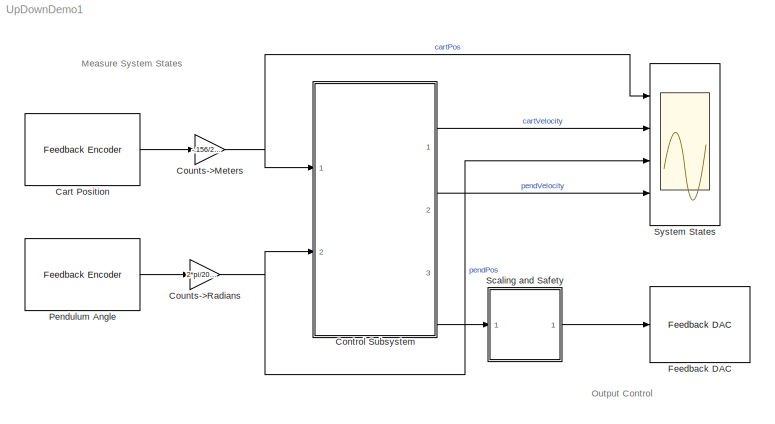
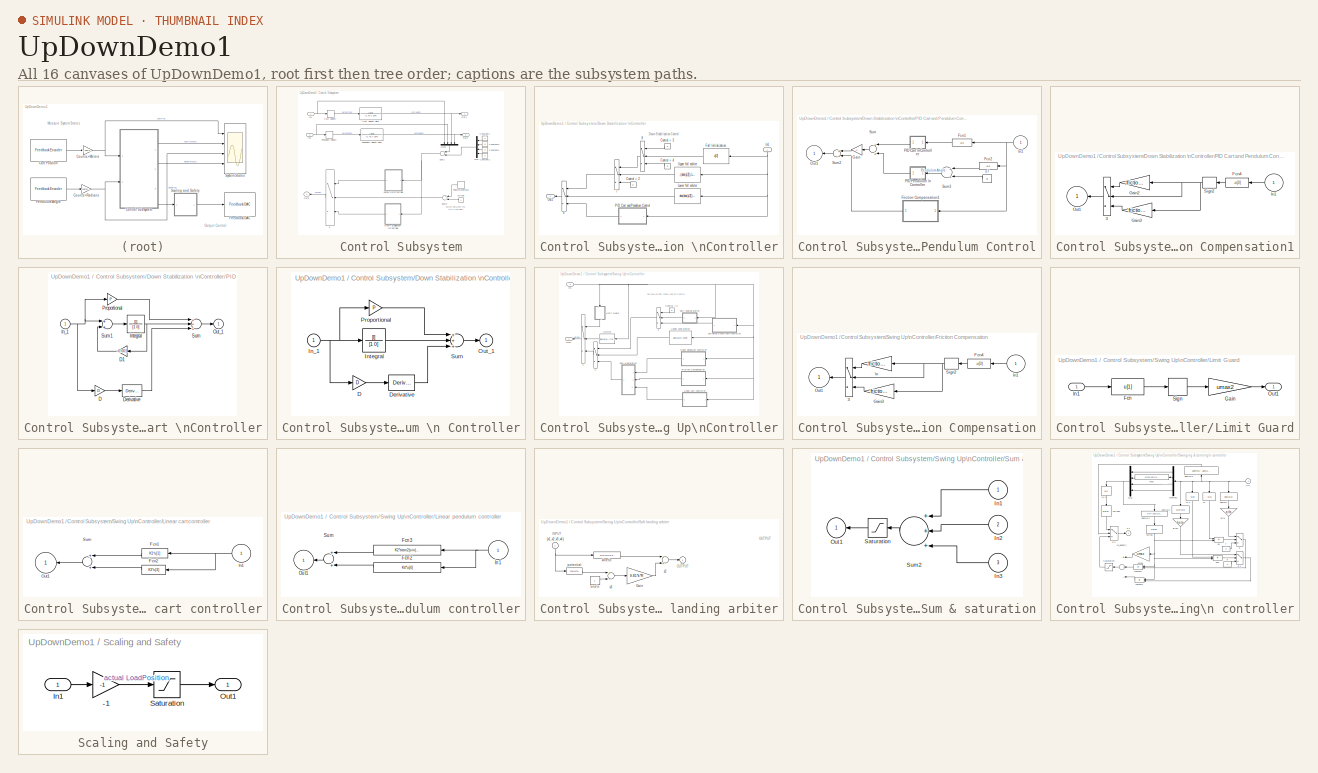
[diagram: thumbnail index - all 16 canvases of the model, root first then tree order]
MODEL UpDownDemo1
KIND model
CONFIG AbsTol = auto
CONFIG FixedStep = 0.001
CONFIG MaxStep = auto
CONFIG MinStep = auto
CONFIG RelTol = 1e-3
CONFIG Solver = ode1
CONFIG SolverMode = SingleTasking
CONFIG StartTime = 0.0
CONFIG StopTime = 100.0
BLOCK [Reference] Cart Position   REF=pci1711/Advantech \nPCI1711 I//O Board Lib/Feedback Encoder 
  Ports = [0, 1]
  SourceBlock = pci1711/Advantech \nPCI1711 I//O Board Lib/Feedback Encoder
  SourceType = Feedback Encoder Block
  channel = 0
  hwAccess = on
  offset = 0
  tsamp = 0.001
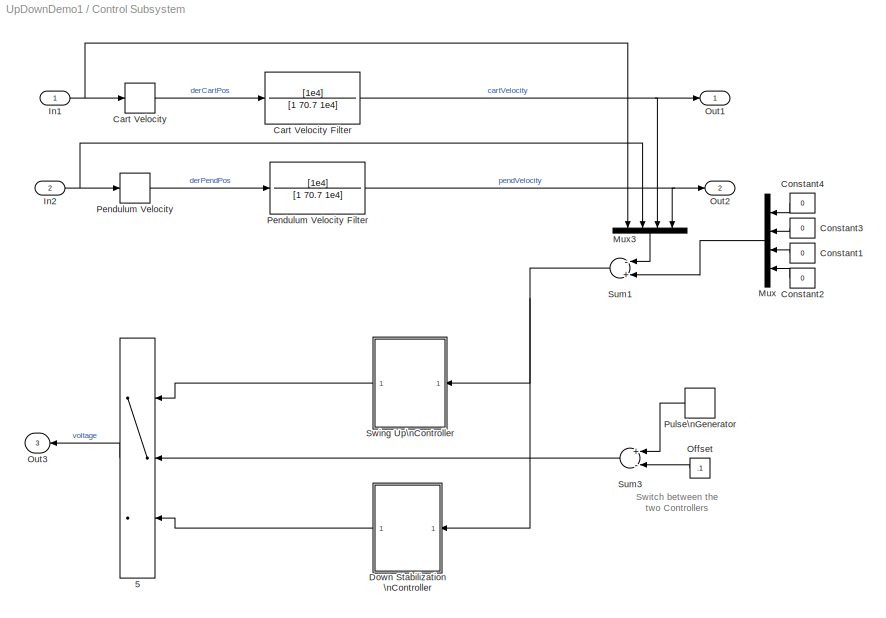
BLOCK [SubSystem] Control Subsystem
  Ports = [2, 3]
  TreatAsAtomicUnit = off
BLOCK [Switch] Control Subsystem/5
BLOCK [Derivative] Control Subsystem/Cart Velocity
BLOCK [TransferFcn] Control Subsystem/Cart Velocity Filter
  Denominator = [1 70.7 1e4]
  Numerator = [1e4]
BLOCK [Constant] Control Subsystem/Constant1
  Value = 0
BLOCK [Constant] Control Subsystem/Constant2
  Value = 0
BLOCK [Constant] Control Subsystem/Constant3
  Value = 0
BLOCK [Constant] Control Subsystem/Constant4
  Value = 0
BLOCK [SubSystem] Control Subsystem/Down Stabilization \nController
  Ports = [1, 1]
  TreatAsAtomicUnit = off
BLOCK [Switch] Control Subsystem/Down Stabilization \nController/6
  Threshold = 0.5
BLOCK [Switch] Control Subsystem/Down Stabilization \nController/7
BLOCK [Switch] Control Subsystem/Down Stabilization \nController/8
BLOCK [Constant] Control Subsystem/Down Stabilization \nController/Control = 2
  Value = 0
BLOCK [Constant] Control Subsystem/Down Stabilization \nController/Control = 3
  Value = .2
BLOCK [Constant] Control Subsystem/Down Stabilization \nController/Control = 4
  Value = .5
BLOCK [Fcn] Control Subsystem/Down Stabilization \nController/Fall Initialization
  Expr = u[3]
  MaskDescription = ZONE
  MaskDisplay = plot(0,0,100,100,[40,60,80,83,80,60,40,20,17,20,40],[89,89,80,70,60,51,51,60,69,80,90],[83,50,17],[70,8,68])
  MaskIconFrame = on
  MaskIconOpaque = on
  MaskIconRotate = none
  MaskIconUnits = autoscale
  MaskType = ZONE
BLOCK [Inport] Control Subsystem/Down Stabilization \nController/In1
BLOCK [Fcn] Control Subsystem/Down Stabilization \nController/Lower fall arbiter
  Expr = abs(abs(u[2])-pi)
  MaskDescription = ZONE
  MaskDisplay = plot(0,0,100,100,[40,60,80,83,80,60,40,20,17,20,40],[89,89,80,70,60,51,51,60,69,80,90],[83,50,17],[70,8,68])
  MaskIconFrame = on
  MaskIconOpaque = on
  MaskIconRotate = none
  MaskIconUnits = autoscale
  MaskType = ZONE
BLOCK [Outport] Control Subsystem/Down Stabilization \nController/Out1
BLOCK [SubSystem] Control Subsystem/Down Stabilization \nController/PID Cart and Pendulum Control
  MaskDisplay = plot(0,0,100,100,[40,30,20],[87,85,80],[46,54,54,46,46],[90,90,80,80,90],[46,45,45,46,54,55,55,54,46],[78,80,90,91,91,90,80,78,78],[51,51,49,49],[78,10,10,78],[90,80,70,60],[70,80,85,88],[20,10],[80,70],[20,20,15],[73,80,80],[85,80,80],[80,80,74])  <repeated x5 — deduplicated; at blocks: PID Cart and Pendulum Control, Friction Compensation1, Friction Compensation, Linear cart controller, Linear pendulum controller>
  MaskIconFrame = on
  MaskIconOpaque = on
  MaskIconRotate = none
  MaskIconUnits = autoscale
  MaskType = linear
  Ports = [1, 1]
  TreatAsAtomicUnit = off
BLOCK [Fcn] Control Subsystem/Down Stabilization \nController/PID Cart and Pendulum Control/Fcn1
  Expr = u[1]
BLOCK [Fcn] Control Subsystem/Down Stabilization \nController/PID Cart and Pendulum Control/Fcn2
  Expr = u[2]
BLOCK [SubSystem] Control Subsystem/Down Stabilization \nController/PID Cart and Pendulum Control/Friction Compensation1
  MaskCallbackString = |
  MaskEnableString = on,on
  MaskIconFrame = on
  MaskIconOpaque = on
  MaskIconRotate = none
  MaskIconUnits = autoscale
  MaskPromptString = Friction Compensation Magnitude in Negative Direction|Friction Compensation Magnitude in Positive Direction
  MaskStyleString = edit,edit
  MaskToolTipString = on,on
  MaskTunableValueString = on,on
  MaskType = linear
  MaskValueString = .1|.1
  MaskVarAliasString = ,
  MaskVariables = frictionCompNeg=@1;frictionCompPos=@2;
  MaskVisibilityString = on,on
  Ports = [1, 1]
  TreatAsAtomicUnit = off
BLOCK [Switch] Control Subsystem/Down Stabilization \nController/PID Cart and Pendulum Control/Friction Compensation1/3
BLOCK [Fcn] Control Subsystem/Down Stabilization \nController/PID Cart and Pendulum Control/Friction Compensation1/Fcn4
  Expr = -u[3]
BLOCK [Gain] Control Subsystem/Down Stabilization \nController/PID Cart and Pendulum Control/Friction Compensation1/Gain2
  Gain = frictionCompPos
BLOCK [Gain] Control Subsystem/Down Stabilization \nController/PID Cart and Pendulum Control/Friction Compensation1/Gain3
  Gain = frictionCompNeg
BLOCK [Inport] Control Subsystem/Down Stabilization \nController/PID Cart and Pendulum Control/Friction Compensation1/In1
BLOCK [Outport] Control Subsystem/Down Stabilization \nController/PID Cart and Pendulum Control/Friction Compensation1/Out1
  InitialOutput = 0
BLOCK [Signum] Control Subsystem/Down Stabilization \nController/PID Cart and Pendulum Control/Friction Compensation1/Sign2
  Tag = T
BLOCK [Gain] Control Subsystem/Down Stabilization \nController/PID Cart and Pendulum Control/Gain
  Gain = -1
BLOCK [Inport] Control Subsystem/Down Stabilization \nController/PID Cart and Pendulum Control/In1
BLOCK [Outport] Control Subsystem/Down Stabilization \nController/PID Cart and Pendulum Control/Out1
  InitialOutput = 0
BLOCK [SubSystem] Control Subsystem/Down Stabilization \nController/PID Cart and Pendulum Control/PID Cart \nController
  MaskCallbackString = ||
  MaskDescription = Enter expressions for proportional, integral, and derivative terms.\nP+I/s+Ds
  MaskDisplay = disp('PID')
  MaskEnableString = on,on,on
  MaskHelp = This block implements a PID controller where parameters are entered for the Proportional, Integral and Derivative terms. Unmask this block to see how it works. The derivative term is implemented using a true derivative block.
  MaskIconFrame = on
  MaskIconOpaque = on
  MaskIconRotate = none
  MaskIconUnits = autoscale
  MaskInitialization = P=@1; I=@2; D=@3;
  MaskPromptString = Proportional:|Integral|Derivative:
  MaskStyleString = edit,edit,edit
  MaskToolTipString = on,on,on
  MaskTunableValueString = on,on,on
  MaskType = PID Controller
  MaskValueString = -10|-2|-2
  MaskVarAliasString = ,,
  MaskVisibilityString = on,on,on
  Ports = [1, 1]
  ShowPortLabels = off
  TreatAsAtomicUnit = off
BLOCK [Gain] Control Subsystem/Down Stabilization \nController/PID Cart and Pendulum Control/PID Cart \nController/D
  Gain = D
BLOCK [Gain] Control Subsystem/Down Stabilization \nController/PID Cart and Pendulum Control/PID Cart \nController/D1
  Gain = -0.001
BLOCK [Derivative] Control Subsystem/Down Stabilization \nController/PID Cart and Pendulum Control/PID Cart \nController/Derivative
BLOCK [Inport] Control Subsystem/Down Stabilization \nController/PID Cart and Pendulum Control/PID Cart \nController/In_1
BLOCK [TransferFcn] Control Subsystem/Down Stabilization \nController/PID Cart and Pendulum Control/PID Cart \nController/Integral
  Denominator = [1 0]
  Numerator = [I]
BLOCK [Outport] Control Subsystem/Down Stabilization \nController/PID Cart and Pendulum Control/PID Cart \nController/Out_1
  InitialOutput = 0
BLOCK [Gain] Control Subsystem/Down Stabilization \nController/PID Cart and Pendulum Control/PID Cart \nController/Proportional
  Gain = P
BLOCK [Sum] Control Subsystem/Down Stabilization \nController/PID Cart and Pendulum Control/PID Cart \nController/Sum
  Inputs = +++
  Ports = [3, 1]
BLOCK [Sum] Control Subsystem/Down Stabilization \nController/PID Cart and Pendulum Control/PID Cart \nController/Sum1
  Ports = [2, 1]
BLOCK [SubSystem] Control Subsystem/Down Stabilization \nController/PID Cart and Pendulum Control/PID Pendulum \n Controller
  MaskCallbackString = ||
  MaskDescription = Enter expressions for proportional, integral, and derivative terms.\nP+I/s+Ds
  MaskDisplay = disp('PID')
  MaskEnableString = on,on,on
  MaskHelp = This block implements a PID controller where parameters are entered for the Proportional, Integral and Derivative terms. Unmask this block to see how it works. The derivative term is implemented using a true derivative block.
  MaskIconFrame = on
  MaskIconOpaque = on
  MaskIconRotate = none
  MaskIconUnits = autoscale
  MaskInitialization = P=@1; I=@2; D=@3;
  MaskPromptString = Proportional:|Integral|Derivative:
  MaskStyleString = edit,edit,edit
  MaskToolTipString = on,on,on
  MaskTunableValueString = on,on,on
  MaskType = PID Controller
  MaskValueString = 5|0|0
  MaskVarAliasString = ,,
  MaskVisibilityString = on,on,on
  Ports = [1, 1]
  ShowPortLabels = off
  TreatAsAtomicUnit = off
BLOCK [Gain] Control Subsystem/Down Stabilization \nController/PID Cart and Pendulum Control/PID Pendulum \n Controller/D
  Gain = D
BLOCK [Derivative] Control Subsystem/Down Stabilization \nController/PID Cart and Pendulum Control/PID Pendulum \n Controller/Derivative
BLOCK [Inport] Control Subsystem/Down Stabilization \nController/PID Cart and Pendulum Control/PID Pendulum \n Controller/In_1
BLOCK [TransferFcn] Control Subsystem/Down Stabilization \nController/PID Cart and Pendulum Control/PID Pendulum \n Controller/Integral
  Denominator = [1 0]
  Numerator = [I]
BLOCK [Outport] Control Subsystem/Down Stabilization \nController/PID Cart and Pendulum Control/PID Pendulum \n Controller/Out_1
  InitialOutput = 0
BLOCK [Gain] Control Subsystem/Down Stabilization \nController/PID Cart and Pendulum Control/PID Pendulum \n Controller/Proportional
  Gain = P
BLOCK [Sum] Control Subsystem/Down Stabilization \nController/PID Cart and Pendulum Control/PID Pendulum \n Controller/Sum
  Inputs = +++
  Ports = [3, 1]
BLOCK [Sum] Control Subsystem/Down Stabilization \nController/PID Cart and Pendulum Control/Sum
  Ports = [2, 1]
BLOCK [Sum] Control Subsystem/Down Stabilization \nController/PID Cart and Pendulum Control/Sum2
  Ports = [2, 1]
BLOCK [Sum] Control Subsystem/Down Stabilization \nController/PID Cart and Pendulum Control/Sum3
  Ports = [2, 1]
BLOCK [Constant] Control Subsystem/Down Stabilization \nController/PID Cart and Pendulum Control/s7
  Value = pi
BLOCK [Fcn] Control Subsystem/Down Stabilization \nController/Upper fall arbiter
  Expr = -(abs(u[2])-Lcone)
  MaskDescription = ZONE
  MaskDisplay = plot(0,0,100,100,[40,60,80,83,80,60,40,20,17,20,40],[89,89,80,70,60,51,51,60,69,80,90],[83,50,17],[70,8,68])
  MaskEnableString = on
  MaskIconFrame = on
  MaskIconOpaque = on
  MaskIconRotate = none
  MaskIconUnits = autoscale
  MaskPromptString = Cone Width
  MaskStyleString = edit
  MaskToolTipString = on
  MaskTunableValueString = on
  MaskType = ZONE
  MaskValueString = 0.3
  MaskVariables = Lcone=@1;
  MaskVisibilityString = on
BLOCK [Inport] Control Subsystem/In1
BLOCK [Inport] Control Subsystem/In2
  Port = 2
BLOCK [Mux] Control Subsystem/Mux
  Ports = [4, 1]
BLOCK [Mux] Control Subsystem/Mux3
  Ports = [4, 1]
BLOCK [Constant] Control Subsystem/Offset
  Value = .1
BLOCK [Outport] Control Subsystem/Out1
BLOCK [Outport] Control Subsystem/Out2
  Port = 2
BLOCK [Outport] Control Subsystem/Out3
  Port = 3
BLOCK [Derivative] Control Subsystem/Pendulum Velocity
BLOCK [TransferFcn] Control Subsystem/Pendulum Velocity  Filter
  Denominator = [1 70.7 1e4]
  Numerator = [1e4]
BLOCK [DiscretePulseGenerator] Control Subsystem/Pulse\nGenerator
  Period = 30
  PulseType = Time based
  PulseWidth = 70
BLOCK [Sum] Control Subsystem/Sum1
  Inputs = -+
  Ports = [2, 1]
BLOCK [Sum] Control Subsystem/Sum3
  Inputs = +-
  Ports = [2, 1]
BLOCK [SubSystem] Control Subsystem/Swing Up\nController
  Ports = [1, 1]
  TreatAsAtomicUnit = off
BLOCK [Switch] Control Subsystem/Swing Up\nController/2
BLOCK [Switch] Control Subsystem/Swing Up\nController/3
BLOCK [Switch] Control Subsystem/Swing Up\nController/4
BLOCK [Constant] Control Subsystem/Swing Up\nController/Control = 0
  Value = 0
BLOCK [SubSystem] Control Subsystem/Swing Up\nController/Friction Compensation
  MaskCallbackString = |
  MaskEnableString = on,on
  MaskIconFrame = on
  MaskIconOpaque = on
  MaskIconRotate = none
  MaskIconUnits = autoscale
  MaskPromptString = Friction Compensation Magnitude in Negative Direction|Friction Compensation Magnitude in Positive Direction
  MaskStyleString = edit,edit
  MaskToolTipString = on,on
  MaskTunableValueString = on,on
  MaskType = linear
  MaskValueString = .1|.1
  MaskVarAliasString = ,
  MaskVariables = frictionCompNeg=@1;frictionCompPos=@2;
  MaskVisibilityString = on,on
  Ports = [1, 1]
  TreatAsAtomicUnit = off
BLOCK [Switch] Control Subsystem/Swing Up\nController/Friction Compensation/3
BLOCK [Fcn] Control Subsystem/Swing Up\nController/Friction Compensation/Fcn4
  Expr = -u[3]
BLOCK [Gain] Control Subsystem/Swing Up\nController/Friction Compensation/Gain3
  Gain = frictionCompNeg
BLOCK [Inport] Control Subsystem/Swing Up\nController/Friction Compensation/In1
BLOCK [Outport] Control Subsystem/Swing Up\nController/Friction Compensation/Out1
  InitialOutput = 0
BLOCK [Signum] Control Subsystem/Swing Up\nController/Friction Compensation/Sign2
  Tag = T
BLOCK [Gain] Control Subsystem/Swing Up\nController/Friction Compensation/\n
  Gain = frictionCompPos
BLOCK [Inport] Control Subsystem/Swing Up\nController/In1
BLOCK [SubSystem] Control Subsystem/Swing Up\nController/Limit Guard
  MaskDisplay = plot(0,0,100,100,[20,40,40,20,20],[60,60,49,49,60],[56,59,40],[58,55,55],[56,59],[52,55],[38,13,13],[39,39,46],[46,13],[46,46],[23,23,24,22,24,24,22,23],[47,45,49,48,48,46,47,49],[36,35,34,34,37,34,36,35,36,37,35,34,35],[49,48,46,49,48,47,45,47,48,46,46,47,49],[22,22,24,24],[46,49,48,47])
  MaskEnableString = on
  MaskIconFrame = on
  MaskIconOpaque = on
  MaskIconRotate = none
  MaskIconUnits = autoscale
  MaskPromptString = maximal force
  MaskStyleString = edit
  MaskToolTipString = on
  MaskTunableValueString = on
  MaskValueString = .5
  MaskVariables = umax2=@1;
  MaskVisibilityString = on
  Ports = [1, 1]
  TreatAsAtomicUnit = off
BLOCK [Fcn] Control Subsystem/Swing Up\nController/Limit Guard/Fcn
  Expr = u[1]
BLOCK [Gain] Control Subsystem/Swing Up\nController/Limit Guard/Gain
  Gain = umax2
BLOCK [Inport] Control Subsystem/Swing Up\nController/Limit Guard/In1
BLOCK [Outport] Control Subsystem/Swing Up\nController/Limit Guard/Out1
  InitialOutput = 0
BLOCK [Signum] Control Subsystem/Swing Up\nController/Limit Guard/Sign
BLOCK [Fcn] Control Subsystem/Swing Up\nController/Limiter
  Expr = abs(u[1])-limit
  MaskDisplay = plot(0,0,100,100,[10,90,90,10],[52,52,50,50],[30,30],[52,60],[70,68,68,70,70],[60,60,52,52,60],[30,32,32,30],[52,52,60,60])
  MaskEnableString = on
  MaskIconFrame = on
  MaskIconOpaque = on
  MaskIconRotate = none
  MaskIconUnits = autoscale
  MaskPromptString = Rail mg - rail limit
  MaskStyleString = edit
  MaskToolTipString = on
  MaskTunableValueString = on
  MaskValueString = 0.3
  MaskVariables = limit=@1;
  MaskVisibilityString = on
BLOCK [SubSystem] Control Subsystem/Swing Up\nController/Linear cart controller
  MaskCallbackString = |
  MaskEnableString = on,on
  MaskIconFrame = on
  MaskIconOpaque = on
  MaskIconRotate = none
  MaskIconUnits = autoscale
  MaskPromptString = K1  - position  feedback| K3  -  velocity  feedback
  MaskStyleString = edit,edit
  MaskToolTipString = on,on
  MaskTunableValueString = on,on
  MaskType = linear
  MaskValueString = -7|-4
  MaskVarAliasString = ,
  MaskVariables = K1=@1;K3=@2;
  MaskVisibilityString = on,on
  Ports = [1, 1]
  TreatAsAtomicUnit = off
BLOCK [Fcn] Control Subsystem/Swing Up\nController/Linear cart controller/Fcn1
  Expr = K1*u[1]
BLOCK [Fcn] Control Subsystem/Swing Up\nController/Linear cart controller/Fcn2
  Expr = K3*u[3]
BLOCK [Inport] Control Subsystem/Swing Up\nController/Linear cart controller/In1
BLOCK [Outport] Control Subsystem/Swing Up\nController/Linear cart controller/Out1
  InitialOutput = 0
BLOCK [Sum] Control Subsystem/Swing Up\nController/Linear cart controller/Sum
  Ports = [2, 1]
BLOCK [SubSystem] Control Subsystem/Swing Up\nController/Linear pendulum controller
  MaskCallbackString = |
  MaskEnableString = on,on
  MaskIconFrame = on
  MaskIconOpaque = on
  MaskIconRotate = none
  MaskIconUnits = autoscale
  MaskPromptString = K2  - angle  feedback| K4  - angular velocity  feedback
  MaskStyleString = edit,edit
  MaskToolTipString = on,on
  MaskTunableValueString = on,on
  MaskType = linear
  MaskValueString = 50|3.5
  MaskVarAliasString = ,
  MaskVariables = K2=@1;K4=@2;
  MaskVisibilityString = on,on
  Ports = [1, 1]
  TreatAsAtomicUnit = off
BLOCK [Fcn] Control Subsystem/Swing Up\nController/Linear pendulum controller/Fcn2
  Expr = K4*u[4]
BLOCK [Fcn] Control Subsystem/Swing Up\nController/Linear pendulum controller/Fcn3
  Expr = K2*atan2(sin(u[2]),cos(u[2]))
BLOCK [Inport] Control Subsystem/Swing Up\nController/Linear pendulum controller/In1
BLOCK [Outport] Control Subsystem/Swing Up\nController/Linear pendulum controller/Out1
  InitialOutput = 0
BLOCK [Sum] Control Subsystem/Swing Up\nController/Linear pendulum controller/Sum
  Ports = [2, 1]
BLOCK [Outport] Control Subsystem/Swing Up\nController/Out1
BLOCK [SubSystem] Control Subsystem/Swing Up\nController/Soft landing arbiter
  MaskCallbackString = |
  MaskDescription = Soft landing
  MaskDisplay = plot(0,0,100,100,[14,20,20,14,14],[20,20,8,8,20],[40,35,35,40,40],[39,40,51,51,40],[60,55,55,56,60,60],[70,70,60,60,60,71],[74,74,80,80,74],[80,91,91,80,80])
  MaskEnableString = on,on
  MaskIconFrame = on
  MaskIconOpaque = on
  MaskIconRotate = none
  MaskIconUnits = autoscale
  MaskPromptString = k coefficient|R value
  MaskStyleString = edit,edit
  MaskToolTipString = on,on
  MaskTunableValueString = on,on
  MaskType = Soft landing
  MaskValueString = 8.7|0.35
  MaskVarAliasString = ,
  MaskVariables = k=@1;R=@2;
  MaskVisibilityString = on,on
  Ports = [1, 1]
  ShowPortLabels = off
  TreatAsAtomicUnit = off
BLOCK [Inport] Control Subsystem/Swing Up\nController/Soft landing arbiter/(x1,x2,x3,x4)
BLOCK [Gain] Control Subsystem/Swing Up\nController/Soft landing arbiter/Gain
  Gain = 9.81*k*R
BLOCK [Outport] Control Subsystem/Swing Up\nController/Soft landing arbiter/S5
  InitialOutput = 0
BLOCK [Fcn] Control Subsystem/Swing Up\nController/Soft landing arbiter/kinetic
  Expr = u[4]*u[4]*0.5
BLOCK [Constant] Control Subsystem/Swing Up\nController/Soft landing arbiter/one\n
BLOCK [Fcn] Control Subsystem/Swing Up\nController/Soft landing arbiter/potential
  Expr = cos(u[2])
BLOCK [Sum] Control Subsystem/Swing Up\nController/Soft landing arbiter/s2
  Ports = [2, 1]
BLOCK [Sum] Control Subsystem/Swing Up\nController/Soft landing arbiter/s3
  Inputs = +-
  Ports = [2, 1]
BLOCK [SubSystem] Control Subsystem/Swing Up\nController/Sum & saturation
  MaskEnableString = on
  MaskIconFrame = on
  MaskIconOpaque = on
  MaskIconRotate = none
  MaskIconUnits = autoscale
  MaskPromptString = max control
  MaskStyleString = edit
  MaskToolTipString = on
  MaskTunableValueString = on
  MaskValueString = 2.5
  MaskVariables = umax1=@1;
  MaskVisibilityString = on
  Ports = [3, 1]
  TreatAsAtomicUnit = off
BLOCK [Inport] Control Subsystem/Swing Up\nController/Sum & saturation/In1
BLOCK [Inport] Control Subsystem/Swing Up\nController/Sum & saturation/In2
  Port = 2
BLOCK [Inport] Control Subsystem/Swing Up\nController/Sum & saturation/In3
  Port = 3
BLOCK [Outport] Control Subsystem/Swing Up\nController/Sum & saturation/Out1
  InitialOutput = 0
BLOCK [Saturate] Control Subsystem/Swing Up\nController/Sum & saturation/Saturation
  LowerLimit = -umax1
  UpperLimit = umax1
BLOCK [Sum] Control Subsystem/Swing Up\nController/Sum & saturation/Sum2
  Inputs = +++
  Ports = [3, 1]
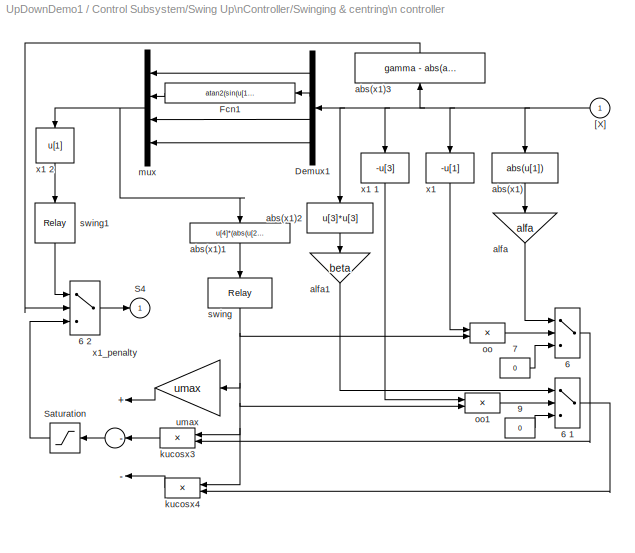
BLOCK [SubSystem] Control Subsystem/Swing Up\nController/Swinging & centring\n controller
  MaskCallbackString = |||
  MaskDescription = swing
  MaskDisplay = plot(0,0,100,100,[20,20],[12,87],[93,90,90,93,7],[50,46,54,50,50],[20,22,18,20],[87,80,80,88],[80,80,75,75,71,71,65,65,60,60,49,49,40,40,20],[50,40,40,60,60,50,50,80,80,20,21,80,80,21,20])
  MaskEnableString = on,on,on,on
  MaskIconFrame = on
  MaskIconOpaque = on
  MaskIconRotate = none
  MaskIconUnits = autoscale
  MaskPromptString = maximal control umax|ALPHA - centering cart factor related to position|BETA - centering cart factor related to velocity|GAMMA - centering cart factor related to + - pi/2 angle
  MaskStyleString = edit,edit,edit,edit
  MaskToolTipString = on,on,on,on
  MaskTunableValueString = on,on,on,on
  MaskType = swing
  MaskValueString = 1|2.2|.4|0.
  MaskVarAliasString = ,,,
  MaskVariables = umax=@1;alfa=@2;beta=@3;gamma=@4;
  MaskVisibilityString = on,on,on,on
  Ports = [1, 1]
  ShowPortLabels = off
  TreatAsAtomicUnit = off
BLOCK [Switch] Control Subsystem/Swing Up\nController/Swinging & centring\n controller/6 
BLOCK [Switch] Control Subsystem/Swing Up\nController/Swinging & centring\n controller/6 1
BLOCK [Switch] Control Subsystem/Swing Up\nController/Swinging & centring\n controller/6 2
BLOCK [Constant] Control Subsystem/Swing Up\nController/Swinging & centring\n controller/7
  Value = 0
BLOCK [Constant] Control Subsystem/Swing Up\nController/Swinging & centring\n controller/9
  Value = 0
BLOCK [Demux] Control Subsystem/Swing Up\nController/Swinging & centring\n controller/Demux1
  Ports = [1, 4]
BLOCK [Fcn] Control Subsystem/Swing Up\nController/Swinging & centring\n controller/Fcn1
  Expr = atan2(sin(u[1]),cos(u[1]))
BLOCK [Outport] Control Subsystem/Swing Up\nController/Swinging & centring\n controller/S4
  InitialOutput = 0
BLOCK [Saturate] Control Subsystem/Swing Up\nController/Swinging & centring\n controller/Saturation
  LowerLimit = -umax
  UpperLimit = umax
BLOCK [Inport] Control Subsystem/Swing Up\nController/Swinging & centring\n controller/[X]
BLOCK [Fcn] Control Subsystem/Swing Up\nController/Swinging & centring\n controller/abs(x1)
  Expr = abs(u[1])
BLOCK [Fcn] Control Subsystem/Swing Up\nController/Swinging & centring\n controller/abs(x1)1
  Expr = u[4]*(abs(u[2])-pi/2)
BLOCK [Fcn] Control Subsystem/Swing Up\nController/Swinging & centring\n controller/abs(x1)2
  Expr = u[3]*u[3]
BLOCK [Fcn] Control Subsystem/Swing Up\nController/Swinging & centring\n controller/abs(x1)3
  Expr = gamma - abs(abs(u[2])-pi/2)
BLOCK [Gain] Control Subsystem/Swing Up\nController/Swinging & centring\n controller/alfa
  Gain = alfa
BLOCK [Gain] Control Subsystem/Swing Up\nController/Swinging & centring\n controller/alfa1
  Gain = beta
BLOCK [Product] Control Subsystem/Swing Up\nController/Swinging & centring\n controller/kucosx3
  Ports = [2, 1]
BLOCK [Product] Control Subsystem/Swing Up\nController/Swinging & centring\n controller/kucosx4
  Ports = [2, 1]
BLOCK [Mux] Control Subsystem/Swing Up\nController/Swinging & centring\n controller/mux
  Ports = [4, 1]
BLOCK [Product] Control Subsystem/Swing Up\nController/Swinging & centring\n controller/oo
  Ports = [2, 1]
BLOCK [Product] Control Subsystem/Swing Up\nController/Swinging & centring\n controller/oo1
  Ports = [2, 1]
BLOCK [Relay] Control Subsystem/Swing Up\nController/Swinging & centring\n controller/swing
  OffOutputValue = -1
BLOCK [Relay] Control Subsystem/Swing Up\nController/Swinging & centring\n controller/swing1
  OffOutputValue = -1
BLOCK [Gain] Control Subsystem/Swing Up\nController/Swinging & centring\n controller/umax
  Gain = umax
BLOCK [Fcn] Control Subsystem/Swing Up\nController/Swinging & centring\n controller/x1 
  Expr = -u[1]
BLOCK [Fcn] Control Subsystem/Swing Up\nController/Swinging & centring\n controller/x1 1
  Expr = -u[3]
BLOCK [Fcn] Control Subsystem/Swing Up\nController/Swinging & centring\n controller/x1 2
  Expr = u[1]
BLOCK [Sum] Control Subsystem/Swing Up\nController/Swinging & centring\n controller/x1_penalty
  Inputs = +--
  Ports = [3, 1]
BLOCK [Fcn] Control Subsystem/Swing Up\nController/Upper zone arbiter
  Expr = abs(u[2])-cone
  MaskDescription = ZONE
  MaskDisplay = plot(0,0,100,100,[40,60,80,83,80,60,40,20,17,20,40],[89,89,80,70,60,51,51,60,69,80,90],[83,50,17],[70,8,68])
  MaskEnableString = on
  MaskIconFrame = on
  MaskIconOpaque = on
  MaskIconRotate = none
  MaskIconUnits = autoscale
  MaskPromptString = Stab.zone - width of stabilization zone [rad]
  MaskStyleString = edit
  MaskToolTipString = on
  MaskTunableValueString = on
  MaskType = ZONE
  MaskValueString = .3
  MaskVariables = cone=@1;
  MaskVisibilityString = on
BLOCK [Gain] Counts->Meters
  Gain = -.156/2048
BLOCK [Gain] Counts->Radians
  Gain = 2*pi/2048
BLOCK [Reference] Feedback DAC  REF=pci1711/Advantech \nPCI1711 I//O Board Lib/Feedback DAC
  Ports = [1]
  SourceBlock = pci1711/Advantech \nPCI1711 I//O Board Lib/Feedback DAC
  SourceType = DAC Unit for Feedback Experiments
  channel = 0
  hwAccess = on
  range = 0
  tsamp = 0.001
BLOCK [Reference] Pendulum Angle   REF=pci1711/Advantech \nPCI1711 I//O Board Lib/Feedback Encoder 
  Ports = [0, 1]
  SourceBlock = pci1711/Advantech \nPCI1711 I//O Board Lib/Feedback Encoder
  SourceType = Feedback Encoder Block
  channel = 1
  hwAccess = on
  offset = -1024
  tsamp = 0.001
BLOCK [SubSystem] Scaling and Safety
  Ports = [1, 1]
  TreatAsAtomicUnit = off
BLOCK [Gain] Scaling and Safety/-1
  Gain = -1
BLOCK [Inport] Scaling and Safety/In1
BLOCK [Outport] Scaling and Safety/Out1
BLOCK [Saturate] Scaling and Safety/Saturation
  LowerLimit = -2.5
  UpperLimit = 2.5
BLOCK [Scope] System States
  DataFormat = StructureWithTime
  ExtModeUploadOption = log
  LimitDataPoints = off
  NumInputPorts = 4
  Ports = [4]
  SampleInput = on
  SampleTime = 0.01
  TimeRange = 100
  YMax = 0.175~0.8~6~12.5
  YMin = -0.175~-0.9~-0.5~-12.5
  ZoomMode = xonly
ANNOTATION (root): Measure System States
ANNOTATION (root): Output Control
ANNOTATION Control Subsystem: Switch between the \ntwo Controllers
ANNOTATION Control Subsystem/Down Stabilization \nController: Down Stabilisation Control
ANNOTATION Control Subsystem/Swing Up\nController: Swing/Upright Stabilisation Control
ANNOTATION Control Subsystem/Swing Up\nController/Soft landing arbiter: INPUT
ANNOTATION Control Subsystem/Swing Up\nController/Soft landing arbiter: OUTPUT
LINE Cart Position :1 -> Counts->Meters:1
LINE Control Subsystem/5:1 -> Control Subsystem/Out3:1
NET Control Subsystem/Cart Velocity Filter:1 -> Control Subsystem/Mux3:3, Control Subsystem/Out1:1
LINE Control Subsystem/Cart Velocity:1 -> Control Subsystem/Cart Velocity Filter:1
LINE Control Subsystem/Constant1:1 -> Control Subsystem/Mux:3
LINE Control Subsystem/Constant2:1 -> Control Subsystem/Mux:4
LINE Control Subsystem/Constant3:1 -> Control Subsystem/Mux:2
LINE Control Subsystem/Constant4:1 -> Control Subsystem/Mux:1
LINE Control Subsystem/Down Stabilization \nController/6:1 -> Control Subsystem/Down Stabilization \nController/Out1:1
LINE Control Subsystem/Down Stabilization \nController/7:1 -> Control Subsystem/Down Stabilization \nController/6:1
LINE Control Subsystem/Down Stabilization \nController/8:1 -> Control Subsystem/Down Stabilization \nController/7:1
LINE Control Subsystem/Down Stabilization \nController/Control = 2:1 -> Control Subsystem/Down Stabilization \nController/7:3
LINE Control Subsystem/Down Stabilization \nController/Control = 3:1 -> Control Subsystem/Down Stabilization \nController/8:1
LINE Control Subsystem/Down Stabilization \nController/Control = 4:1 -> Control Subsystem/Down Stabilization \nController/8:3
LINE Control Subsystem/Down Stabilization \nController/Fall Initialization:1 -> Control Subsystem/Down Stabilization \nController/8:2
NET Control Subsystem/Down Stabilization \nController/In1:1 -> Control Subsystem/Down Stabilization \nController/Fall Initialization:1, Control Subsystem/Down Stabilization \nController/Lower fall arbiter:1, Control Subsystem/Down Stabilization \nController/PID Cart and Pendulum Control:1, Control Subsystem/Down Stabilization \nController/Upper fall arbiter:1
LINE Control Subsystem/Down Stabilization \nController/Lower fall arbiter:1 -> Control Subsystem/Down Stabilization \nController/6:2
LINE Control Subsystem/Down Stabilization \nController/PID Cart and Pendulum Control/Fcn1:1 -> Control Subsystem/Down Stabilization \nController/PID Cart and Pendulum Control/PID Cart \nController:1
LINE Control Subsystem/Down Stabilization \nController/PID Cart and Pendulum Control/Fcn2:1 -> Control Subsystem/Down Stabilization \nController/PID Cart and Pendulum Control/Sum3:1
LINE Control Subsystem/Down Stabilization \nController/PID Cart and Pendulum Control/Friction Compensation1/3:1 -> Control Subsystem/Down Stabilization \nController/PID Cart and Pendulum Control/Friction Compensation1/Out1:1
LINE Control Subsystem/Down Stabilization \nController/PID Cart and Pendulum Control/Friction Compensation1/Fcn4:1 -> Control Subsystem/Down Stabilization \nController/PID Cart and Pendulum Control/Friction Compensation1/Sign2:1
LINE Control Subsystem/Down Stabilization \nController/PID Cart and Pendulum Control/Friction Compensation1/Gain2:1 -> Control Subsystem/Down Stabilization \nController/PID Cart and Pendulum Control/Friction Compensation1/3:1
LINE Control Subsystem/Down Stabilization \nController/PID Cart and Pendulum Control/Friction Compensation1/Gain3:1 -> Control Subsystem/Down Stabilization \nController/PID Cart and Pendulum Control/Friction Compensation1/3:3
LINE Control Subsystem/Down Stabilization \nController/PID Cart and Pendulum Control/Friction Compensation1/In1:1 -> Control Subsystem/Down Stabilization \nController/PID Cart and Pendulum Control/Friction Compensation1/Fcn4:1
NET Control Subsystem/Down Stabilization \nController/PID Cart and Pendulum Control/Friction Compensation1/Sign2:1 -> Control Subsystem/Down Stabilization \nController/PID Cart and Pendulum Control/Friction Compensation1/3:2, Control Subsystem/Down Stabilization \nController/PID Cart and Pendulum Control/Friction Compensation1/Gain2:1, Control Subsystem/Down Stabilization \nController/PID Cart and Pendulum Control/Friction Compensation1/Gain3:1
LINE Control Subsystem/Down Stabilization \nController/PID Cart and Pendulum Control/Friction Compensation1:1 -> Control Subsystem/Down Stabilization \nController/PID Cart and Pendulum Control/Sum2:2
LINE Control Subsystem/Down Stabilization \nController/PID Cart and Pendulum Control/Gain:1 -> Control Subsystem/Down Stabilization \nController/PID Cart and Pendulum Control/Sum2:1
NET Control Subsystem/Down Stabilization \nController/PID Cart and Pendulum Control/In1:1 -> Control Subsystem/Down Stabilization \nController/PID Cart and Pendulum Control/Fcn1:1, Control Subsystem/Down Stabilization \nController/PID Cart and Pendulum Control/Fcn2:1, Control Subsystem/Down Stabilization \nController/PID Cart and Pendulum Control/Friction Compensation1:1
LINE Control Subsystem/Down Stabilization \nController/PID Cart and Pendulum Control/PID Cart \nController/D1:1 -> Control Subsystem/Down Stabilization \nController/PID Cart and Pendulum Control/PID Cart \nController/Sum1:2
LINE Control Subsystem/Down Stabilization \nController/PID Cart and Pendulum Control/PID Cart \nController/D:1 -> Control Subsystem/Down Stabilization \nController/PID Cart and Pendulum Control/PID Cart \nController/Derivative:1
LINE Control Subsystem/Down Stabilization \nController/PID Cart and Pendulum Control/PID Cart \nController/Derivative:1 -> Control Subsystem/Down Stabilization \nController/PID Cart and Pendulum Control/PID Cart \nController/Sum:3
NET Control Subsystem/Down Stabilization \nController/PID Cart and Pendulum Control/PID Cart \nController/In_1:1 -> Control Subsystem/Down Stabilization \nController/PID Cart and Pendulum Control/PID Cart \nController/D:1, Control Subsystem/Down Stabilization \nController/PID Cart and Pendulum Control/PID Cart \nController/Proportional:1, Control Subsystem/Down Stabilization \nController/PID Cart and Pendulum Control/PID Cart \nController/Sum1:1
NET Control Subsystem/Down Stabilization \nController/PID Cart and Pendulum Control/PID Cart \nController/Integral:1 -> Control Subsystem/Down Stabilization \nController/PID Cart and Pendulum Control/PID Cart \nController/D1:1, Control Subsystem/Down Stabilization \nController/PID Cart and Pendulum Control/PID Cart \nController/Sum:2
LINE Control Subsystem/Down Stabilization \nController/PID Cart and Pendulum Control/PID Cart \nController/Proportional:1 -> Control Subsystem/Down Stabilization \nController/PID Cart and Pendulum Control/PID Cart \nController/Sum:1
LINE Control Subsystem/Down Stabilization \nController/PID Cart and Pendulum Control/PID Cart \nController/Sum1:1 -> Control Subsystem/Down Stabilization \nController/PID Cart and Pendulum Control/PID Cart \nController/Integral:1
LINE Control Subsystem/Down Stabilization \nController/PID Cart and Pendulum Control/PID Cart \nController/Sum:1 -> Control Subsystem/Down Stabilization \nController/PID Cart and Pendulum Control/PID Cart \nController/Out_1:1
LINE Control Subsystem/Down Stabilization \nController/PID Cart and Pendulum Control/PID Cart \nController:1 -> Control Subsystem/Down Stabilization \nController/PID Cart and Pendulum Control/Sum:1
LINE Control Subsystem/Down Stabilization \nController/PID Cart and Pendulum Control/PID Pendulum \n Controller/D:1 -> Control Subsystem/Down Stabilization \nController/PID Cart and Pendulum Control/PID Pendulum \n Controller/Derivative:1
LINE Control Subsystem/Down Stabilization \nController/PID Cart and Pendulum Control/PID Pendulum \n Controller/Derivative:1 -> Control Subsystem/Down Stabilization \nController/PID Cart and Pendulum Control/PID Pendulum \n Controller/Sum:3
NET Control Subsystem/Down Stabilization \nController/PID Cart and Pendulum Control/PID Pendulum \n Controller/In_1:1 -> Control Subsystem/Down Stabilization \nController/PID Cart and Pendulum Control/PID Pendulum \n Controller/D:1, Control Subsystem/Down Stabilization \nController/PID Cart and Pendulum Control/PID Pendulum \n Controller/Integral:1, Control Subsystem/Down Stabilization \nController/PID Cart and Pendulum Control/PID Pendulum \n Controller/Proportional:1
LINE Control Subsystem/Down Stabilization \nController/PID Cart and Pendulum Control/PID Pendulum \n Controller/Integral:1 -> Control Subsystem/Down Stabilization \nController/PID Cart and Pendulum Control/PID Pendulum \n Controller/Sum:2
LINE Control Subsystem/Down Stabilization \nController/PID Cart and Pendulum Control/PID Pendulum \n Controller/Proportional:1 -> Control Subsystem/Down Stabilization \nController/PID Cart and Pendulum Control/PID Pendulum \n Controller/Sum:1
LINE Control Subsystem/Down Stabilization \nController/PID Cart and Pendulum Control/PID Pendulum \n Controller/Sum:1 -> Control Subsystem/Down Stabilization \nController/PID Cart and Pendulum Control/PID Pendulum \n Controller/Out_1:1
LINE Control Subsystem/Down Stabilization \nController/PID Cart and Pendulum Control/PID Pendulum \n Controller:1 -> Control Subsystem/Down Stabilization \nController/PID Cart and Pendulum Control/Sum:2
LINE Control Subsystem/Down Stabilization \nController/PID Cart and Pendulum Control/Sum2:1 -> Control Subsystem/Down Stabilization \nController/PID Cart and Pendulum Control/Out1:1
LINE Control Subsystem/Down Stabilization \nController/PID Cart and Pendulum Control/Sum3:1 -> Control Subsystem/Down Stabilization \nController/PID Cart and Pendulum Control/PID Pendulum \n Controller:1
LINE Control Subsystem/Down Stabilization \nController/PID Cart and Pendulum Control/Sum:1 -> Control Subsystem/Down Stabilization \nController/PID Cart and Pendulum Control/Gain:1
LINE Control Subsystem/Down Stabilization \nController/PID Cart and Pendulum Control/s7:1 -> Control Subsystem/Down Stabilization \nController/PID Cart and Pendulum Control/Sum3:2
LINE Control Subsystem/Down Stabilization \nController/PID Cart and Pendulum Control:1 -> Control Subsystem/Down Stabilization \nController/6:3
LINE Control Subsystem/Down Stabilization \nController/Upper fall arbiter:1 -> Control Subsystem/Down Stabilization \nController/7:2
LINE Control Subsystem/Down Stabilization \nController:1 -> Control Subsystem/5:3
NET Control Subsystem/In1:1 -> Control Subsystem/Cart Velocity:1, Control Subsystem/Mux3:1
NET Control Subsystem/In2:1 -> Control Subsystem/Mux3:2, Control Subsystem/Pendulum Velocity:1
LINE Control Subsystem/Mux3:1 -> Control Subsystem/Sum1:1
LINE Control Subsystem/Mux:1 -> Control Subsystem/Sum1:2
LINE Control Subsystem/Offset:1 -> Control Subsystem/Sum3:2
NET Control Subsystem/Pendulum Velocity  Filter:1 -> Control Subsystem/Mux3:4, Control Subsystem/Out2:1
LINE Control Subsystem/Pendulum Velocity:1 -> Control Subsystem/Pendulum Velocity  Filter:1
LINE Control Subsystem/Pulse\nGenerator:1 -> Control Subsystem/Sum3:1
NET Control Subsystem/Sum1:1 -> Control Subsystem/Down Stabilization \nController:1, Control Subsystem/Swing Up\nController:1
LINE Control Subsystem/Sum3:1 -> Control Subsystem/5:2
LINE Control Subsystem/Swing Up\nController/2:1 -> Control Subsystem/Swing Up\nController/4:3
LINE Control Subsystem/Swing Up\nController/3:1 -> Control Subsystem/Swing Up\nController/2:1
LINE Control Subsystem/Swing Up\nController/4:1 -> Control Subsystem/Swing Up\nController/Out1:1
LINE Control Subsystem/Swing Up\nController/Control = 0:1 -> Control Subsystem/Swing Up\nController/3:1
LINE Control Subsystem/Swing Up\nController/Friction Compensation/3:1 -> Control Subsystem/Swing Up\nController/Friction Compensation/Out1:1
LINE Control Subsystem/Swing Up\nController/Friction Compensation/Fcn4:1 -> Control Subsystem/Swing Up\nController/Friction Compensation/Sign2:1
LINE Control Subsystem/Swing Up\nController/Friction Compensation/Gain3:1 -> Control Subsystem/Swing Up\nController/Friction Compensation/3:3
LINE Control Subsystem/Swing Up\nController/Friction Compensation/In1:1 -> Control Subsystem/Swing Up\nController/Friction Compensation/Fcn4:1
NET Control Subsystem/Swing Up\nController/Friction Compensation/Sign2:1 -> Control Subsystem/Swing Up\nController/Friction Compensation/3:2, Control Subsystem/Swing Up\nController/Friction Compensation/Gain3:1, Control Subsystem/Swing Up\nController/Friction Compensation/\n:1
LINE Control Subsystem/Swing Up\nController/Friction Compensation/\n:1 -> Control Subsystem/Swing Up\nController/Friction Compensation/3:1
LINE Control Subsystem/Swing Up\nController/Friction Compensation:1 -> Control Subsystem/Swing Up\nController/Sum & saturation:2
NET Control Subsystem/Swing Up\nController/In1:1 -> Control Subsystem/Swing Up\nController/Friction Compensation:1, Control Subsystem/Swing Up\nController/Limit Guard:1, Control Subsystem/Swing Up\nController/Limiter:1, Control Subsystem/Swing Up\nController/Linear cart controller:1, Control Subsystem/Swing Up\nController/Linear pendulum controller:1, Control Subsystem/Swing Up\nController/Soft landing arbiter:1, Control Subsystem/Swing Up\nController/Swinging & centring\n controller:1, Control Subsystem/Swing Up\nController/Upper zone arbiter:1
LINE Control Subsystem/Swing Up\nController/Limit Guard/Fcn:1 -> Control Subsystem/Swing Up\nController/Limit Guard/Sign:1
LINE Control Subsystem/Swing Up\nController/Limit Guard/Gain:1 -> Control Subsystem/Swing Up\nController/Limit Guard/Out1:1
LINE Control Subsystem/Swing Up\nController/Limit Guard/In1:1 -> Control Subsystem/Swing Up\nController/Limit Guard/Fcn:1
LINE Control Subsystem/Swing Up\nController/Limit Guard/Sign:1 -> Control Subsystem/Swing Up\nController/Limit Guard/Gain:1
LINE Control Subsystem/Swing Up\nController/Limit Guard:1 -> Control Subsystem/Swing Up\nController/4:1
LINE Control Subsystem/Swing Up\nController/Limiter:1 -> Control Subsystem/Swing Up\nController/4:2
LINE Control Subsystem/Swing Up\nController/Linear cart controller/Fcn1:1 -> Control Subsystem/Swing Up\nController/Linear cart controller/Sum:1
LINE Control Subsystem/Swing Up\nController/Linear cart controller/Fcn2:1 -> Control Subsystem/Swing Up\nController/Linear cart controller/Sum:2
NET Control Subsystem/Swing Up\nController/Linear cart controller/In1:1 -> Control Subsystem/Swing Up\nController/Linear cart controller/Fcn1:1, Control Subsystem/Swing Up\nController/Linear cart controller/Fcn2:1
LINE Control Subsystem/Swing Up\nController/Linear cart controller/Sum:1 -> Control Subsystem/Swing Up\nController/Linear cart controller/Out1:1
LINE Control Subsystem/Swing Up\nController/Linear cart controller:1 -> Control Subsystem/Swing Up\nController/Sum & saturation:3
LINE Control Subsystem/Swing Up\nController/Linear pendulum controller/Fcn2:1 -> Control Subsystem/Swing Up\nController/Linear pendulum controller/Sum:2
LINE Control Subsystem/Swing Up\nController/Linear pendulum controller/Fcn3:1 -> Control Subsystem/Swing Up\nController/Linear pendulum controller/Sum:1
NET Control Subsystem/Swing Up\nController/Linear pendulum controller/In1:1 -> Control Subsystem/Swing Up\nController/Linear pendulum controller/Fcn2:1, Control Subsystem/Swing Up\nController/Linear pendulum controller/Fcn3:1
LINE Control Subsystem/Swing Up\nController/Linear pendulum controller/Sum:1 -> Control Subsystem/Swing Up\nController/Linear pendulum controller/Out1:1
LINE Control Subsystem/Swing Up\nController/Linear pendulum controller:1 -> Control Subsystem/Swing Up\nController/Sum & saturation:1
NET Control Subsystem/Swing Up\nController/Soft landing arbiter/(x1,x2,x3,x4):1 -> Control Subsystem/Swing Up\nController/Soft landing arbiter/kinetic:1, Control Subsystem/Swing Up\nController/Soft landing arbiter/potential:1
LINE Control Subsystem/Swing Up\nController/Soft landing arbiter/Gain:1 -> Control Subsystem/Swing Up\nController/Soft landing arbiter/s2:2
LINE Control Subsystem/Swing Up\nController/Soft landing arbiter/kinetic:1 -> Control Subsystem/Swing Up\nController/Soft landing arbiter/s2:1
LINE Control Subsystem/Swing Up\nController/Soft landing arbiter/one\n:1 -> Control Subsystem/Swing Up\nController/Soft landing arbiter/s3:2
LINE Control Subsystem/Swing Up\nController/Soft landing arbiter/potential:1 -> Control Subsystem/Swing Up\nController/Soft landing arbiter/s3:1
LINE Control Subsystem/Swing Up\nController/Soft landing arbiter/s2:1 -> Control Subsystem/Swing Up\nController/Soft landing arbiter/S5:1
LINE Control Subsystem/Swing Up\nController/Soft landing arbiter/s3:1 -> Control Subsystem/Swing Up\nController/Soft landing arbiter/Gain:1
LINE Control Subsystem/Swing Up\nController/Soft landing arbiter:1 -> Control Subsystem/Swing Up\nController/3:2
LINE Control Subsystem/Swing Up\nController/Sum & saturation/In1:1 -> Control Subsystem/Swing Up\nController/Sum & saturation/Sum2:1
LINE Control Subsystem/Swing Up\nController/Sum & saturation/In2:1 -> Control Subsystem/Swing Up\nController/Sum & saturation/Sum2:2
LINE Control Subsystem/Swing Up\nController/Sum & saturation/In3:1 -> Control Subsystem/Swing Up\nController/Sum & saturation/Sum2:3
LINE Control Subsystem/Swing Up\nController/Sum & saturation/Saturation:1 -> Control Subsystem/Swing Up\nController/Sum & saturation/Out1:1
LINE Control Subsystem/Swing Up\nController/Sum & saturation/Sum2:1 -> Control Subsystem/Swing Up\nController/Sum & saturation/Saturation:1
LINE Control Subsystem/Swing Up\nController/Sum & saturation:1 -> Control Subsystem/Swing Up\nController/2:3
LINE Control Subsystem/Swing Up\nController/Swinging & centring\n controller/6 1:1 -> Control Subsystem/Swing Up\nController/Swinging & centring\n controller/kucosx4:2
LINE Control Subsystem/Swing Up\nController/Swinging & centring\n controller/6 2:1 -> Control Subsystem/Swing Up\nController/Swinging & centring\n controller/S4:1
LINE Control Subsystem/Swing Up\nController/Swinging & centring\n controller/6 :1 -> Control Subsystem/Swing Up\nController/Swinging & centring\n controller/kucosx3:2
LINE Control Subsystem/Swing Up\nController/Swinging & centring\n controller/7:1 -> Control Subsystem/Swing Up\nController/Swinging & centring\n controller/6 :3
LINE Control Subsystem/Swing Up\nController/Swinging & centring\n controller/9:1 -> Control Subsystem/Swing Up\nController/Swinging & centring\n controller/6 1:3
LINE Control Subsystem/Swing Up\nController/Swinging & centring\n controller/Demux1:1 -> Control Subsystem/Swing Up\nController/Swinging & centring\n controller/mux:1
LINE Control Subsystem/Swing Up\nController/Swinging & centring\n controller/Demux1:2 -> Control Subsystem/Swing Up\nController/Swinging & centring\n controller/Fcn1:1
LINE Control Subsystem/Swing Up\nController/Swinging & centring\n controller/Demux1:3 -> Control Subsystem/Swing Up\nController/Swinging & centring\n controller/mux:3
LINE Control Subsystem/Swing Up\nController/Swinging & centring\n controller/Demux1:4 -> Control Subsystem/Swing Up\nController/Swinging & centring\n controller/mux:4
LINE Control Subsystem/Swing Up\nController/Swinging & centring\n controller/Fcn1:1 -> Control Subsystem/Swing Up\nController/Swinging & centring\n controller/mux:2
LINE Control Subsystem/Swing Up\nController/Swinging & centring\n controller/Saturation:1 -> Control Subsystem/Swing Up\nController/Swinging & centring\n controller/6 2:3
NET Control Subsystem/Swing Up\nController/Swinging & centring\n controller/[X]:1 -> Control Subsystem/Swing Up\nController/Swinging & centring\n controller/Demux1:1, Control Subsystem/Swing Up\nController/Swinging & centring\n controller/abs(x1)2:1, Control Subsystem/Swing Up\nController/Swinging & centring\n controller/abs(x1)3:1, Control Subsystem/Swing Up\nController/Swinging & centring\n controller/abs(x1):1, Control Subsystem/Swing Up\nController/Swinging & centring\n controller/x1 1:1, Control Subsystem/Swing Up\nController/Swinging & centring\n controller/x1 :1
LINE Control Subsystem/Swing Up\nController/Swinging & centring\n controller/abs(x1)1:1 -> Control Subsystem/Swing Up\nController/Swinging & centring\n controller/swing:1
LINE Control Subsystem/Swing Up\nController/Swinging & centring\n controller/abs(x1)2:1 -> Control Subsystem/Swing Up\nController/Swinging & centring\n controller/alfa1:1
LINE Control Subsystem/Swing Up\nController/Swinging & centring\n controller/abs(x1)3:1 -> Control Subsystem/Swing Up\nController/Swinging & centring\n controller/6 2:2
LINE Control Subsystem/Swing Up\nController/Swinging & centring\n controller/abs(x1):1 -> Control Subsystem/Swing Up\nController/Swinging & centring\n controller/alfa:1
LINE Control Subsystem/Swing Up\nController/Swinging & centring\n controller/alfa1:1 -> Control Subsystem/Swing Up\nController/Swinging & centring\n controller/6 1:1
LINE Control Subsystem/Swing Up\nController/Swinging & centring\n controller/alfa:1 -> Control Subsystem/Swing Up\nController/Swinging & centring\n controller/6 :1
LINE Control Subsystem/Swing Up\nController/Swinging & centring\n controller/kucosx3:1 -> Control Subsystem/Swing Up\nController/Swinging & centring\n controller/x1_penalty:2
LINE Control Subsystem/Swing Up\nController/Swinging & centring\n controller/kucosx4:1 -> Control Subsystem/Swing Up\nController/Swinging & centring\n controller/x1_penalty:3
NET Control Subsystem/Swing Up\nController/Swinging & centring\n controller/mux:1 -> Control Subsystem/Swing Up\nController/Swinging & centring\n controller/abs(x1)1:1, Control Subsystem/Swing Up\nController/Swinging & centring\n controller/x1 2:1
LINE Control Subsystem/Swing Up\nController/Swinging & centring\n controller/oo1:1 -> Control Subsystem/Swing Up\nController/Swinging & centring\n controller/6 1:2
LINE Control Subsystem/Swing Up\nController/Swinging & centring\n controller/oo:1 -> Control Subsystem/Swing Up\nController/Swinging & centring\n controller/6 :2
LINE Control Subsystem/Swing Up\nController/Swinging & centring\n controller/swing1:1 -> Control Subsystem/Swing Up\nController/Swinging & centring\n controller/6 2:1
NET Control Subsystem/Swing Up\nController/Swinging & centring\n controller/swing:1 -> Control Subsystem/Swing Up\nController/Swinging & centring\n controller/kucosx3:1, Control Subsystem/Swing Up\nController/Swinging & centring\n controller/kucosx4:1, Control Subsystem/Swing Up\nController/Swinging & centring\n controller/oo1:2, Control Subsystem/Swing Up\nController/Swinging & centring\n controller/oo:2, Control Subsystem/Swing Up\nController/Swinging & centring\n controller/umax:1
LINE Control Subsystem/Swing Up\nController/Swinging & centring\n controller/umax:1 -> Control Subsystem/Swing Up\nController/Swinging & centring\n controller/x1_penalty:1
LINE Control Subsystem/Swing Up\nController/Swinging & centring\n controller/x1 1:1 -> Control Subsystem/Swing Up\nController/Swinging & centring\n controller/oo1:1
LINE Control Subsystem/Swing Up\nController/Swinging & centring\n controller/x1 2:1 -> Control Subsystem/Swing Up\nController/Swinging & centring\n controller/swing1:1
LINE Control Subsystem/Swing Up\nController/Swinging & centring\n controller/x1 :1 -> Control Subsystem/Swing Up\nController/Swinging & centring\n controller/oo:1
LINE Control Subsystem/Swing Up\nController/Swinging & centring\n controller/x1_penalty:1 -> Control Subsystem/Swing Up\nController/Swinging & centring\n controller/Saturation:1
LINE Control Subsystem/Swing Up\nController/Swinging & centring\n controller:1 -> Control Subsystem/Swing Up\nController/3:3
LINE Control Subsystem/Swing Up\nController/Upper zone arbiter:1 -> Control Subsystem/Swing Up\nController/2:2
LINE Control Subsystem/Swing Up\nController:1 -> Control Subsystem/5:1
LINE Control Subsystem:1 -> System States:2
LINE Control Subsystem:2 -> System States:4
LINE Control Subsystem:3 -> Scaling and Safety:1
NET Counts->Meters:1 -> Control Subsystem:1, System States:1
NET Counts->Radians:1 -> Control Subsystem:2, System States:3
LINE Pendulum Angle :1 -> Counts->Radians:1
LINE Scaling and Safety/-1:1 -> Scaling and Safety/Saturation:1
LINE Scaling and Safety/In1:1 -> Scaling and Safety/-1:1
LINE Scaling and Safety/Saturation:1 -> Scaling and Safety/Out1:1
LINE Scaling and Safety:1 -> Feedback DAC:1
note: NET lines group one-source signal fan-out (src -> all destinations, sorted); 1:1 wires keep LINE
